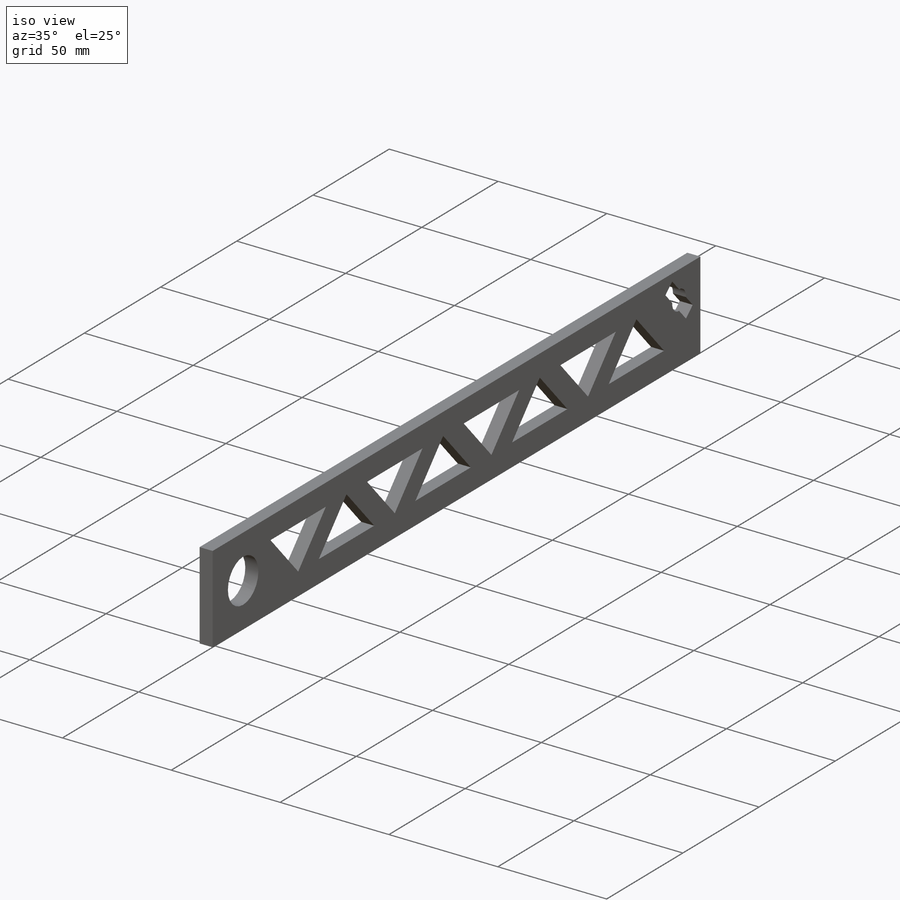
[diagram: iso view]
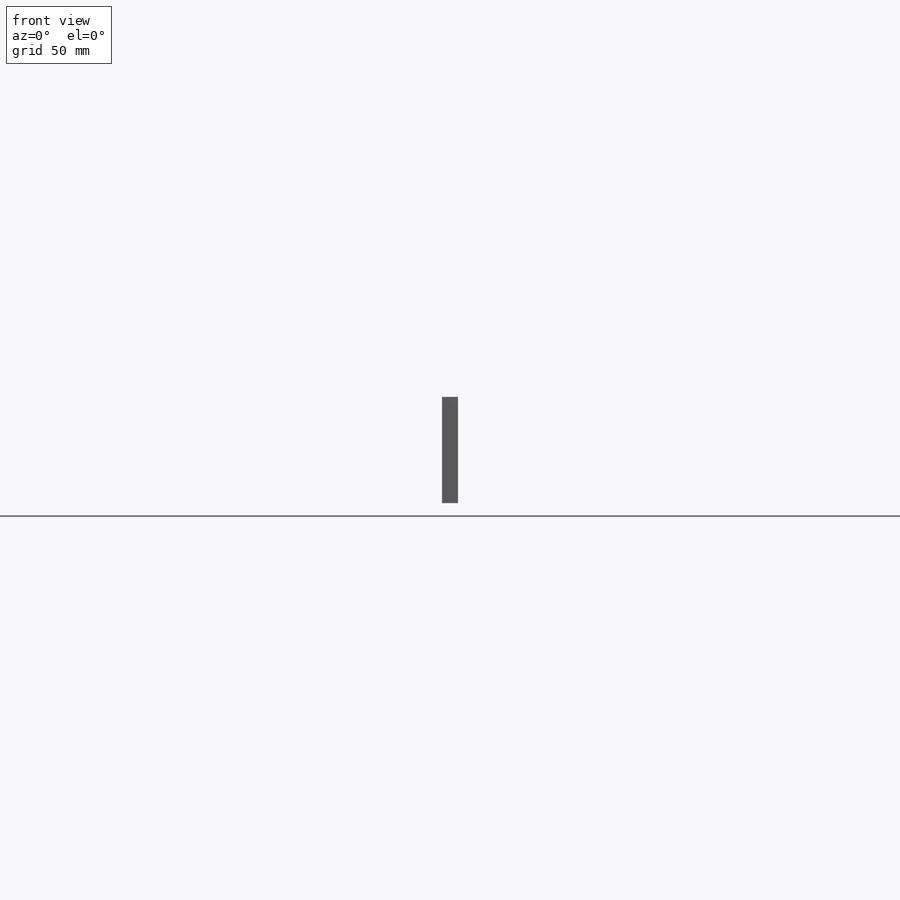
[diagram: front view]
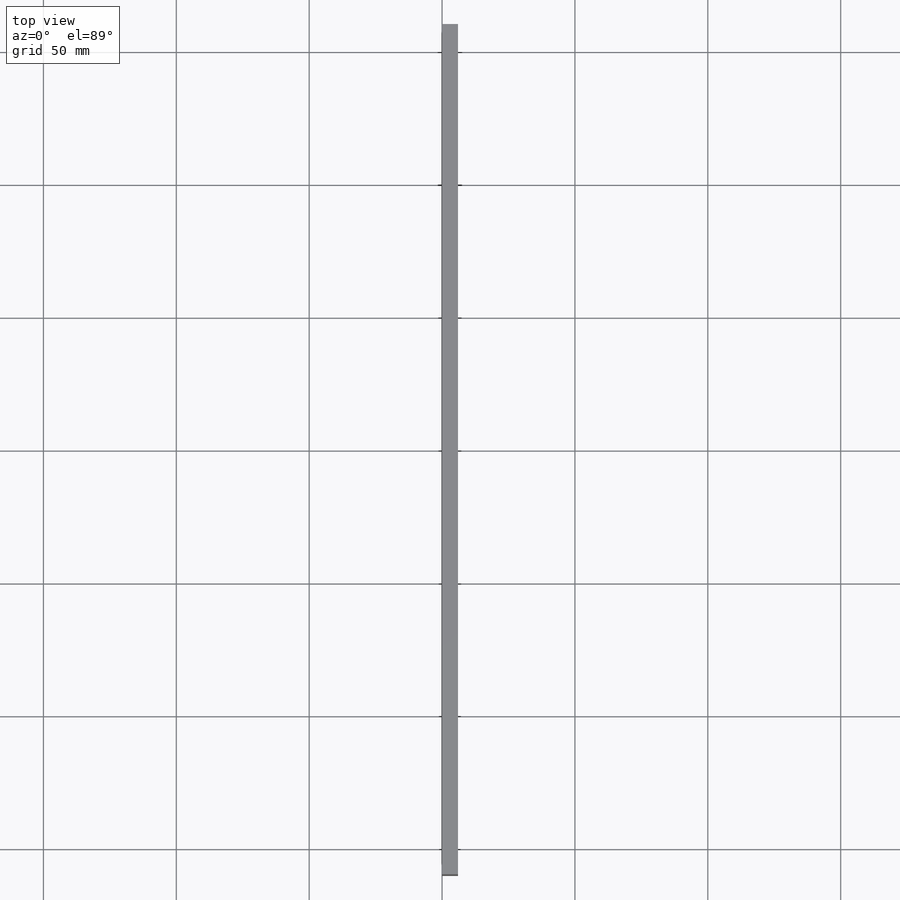
[diagram: top view]
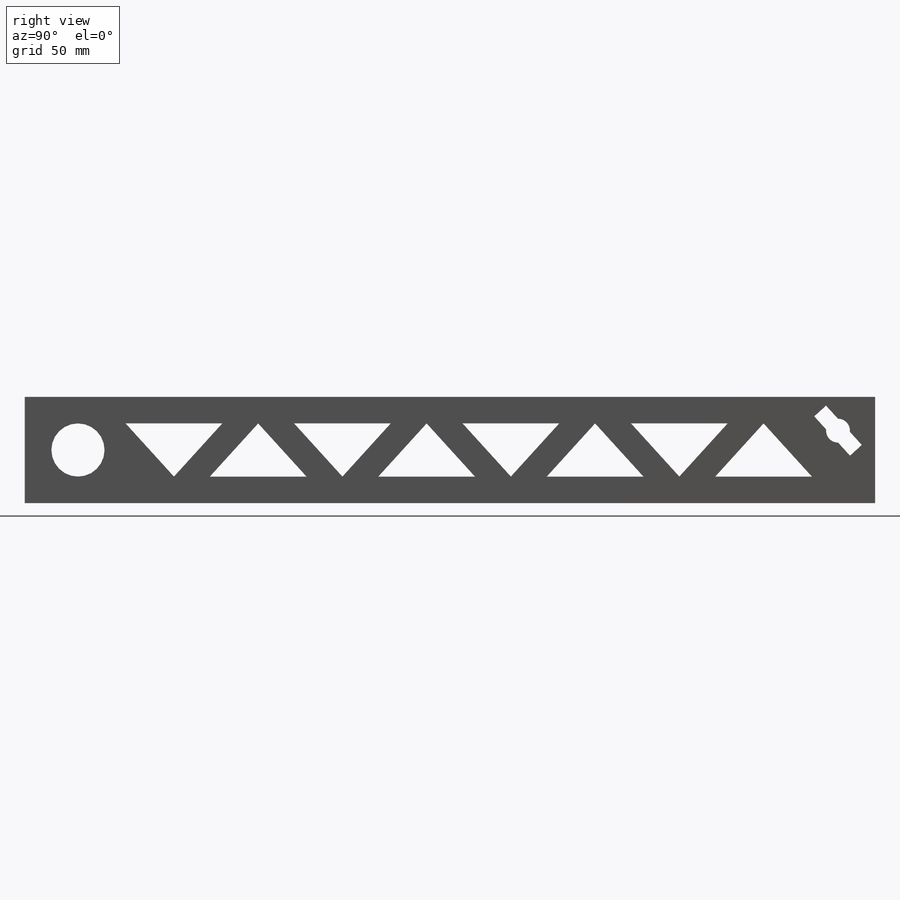
[diagram: right view]
SOLIDWORKS PART (.sldprt)
format: sldprt  version: not decoded by parser v0  size: 250,368 bytes
history: native  units: mm
features: sketch x3, cut_extrude x2, material x1, extrude x1 (+13 scaffold rows collapsed)
feature tree (20):
  scaffold x13  (default folders/planes/origin — collapsed)
  material  "Material <not specified>"
  sketch  "Sketch1"  dims[c1.D3=20.0mm c1.D1=40.0mm c1.D2=320.0mm c1.D4=300.0mm c1.D5=~300.665928mm c2.D4=20.0mm c2.D5=~28.284271mm c3.D5=90.0deg c4.D5=300.0mm]
  extrude  "Boss-Extrude1"  Depth=6mm
  sketch  "Sketch2"  dims[c1.D1=10.0mm c1.D2=10.0mm c1.D3=20.0mm c2.D3=90.0deg c3.D3=10.0mm c3.D4=~36.363636mm c3.D5=~68.060062mm c3.D6=~13.514608mm c3.D7=~13.514608mm c3.D8=~13.514608mm]
  cut_extrude  "Cut-Extrude2"  Depth=10mm
  sketch  "Sketch3"  dims[D2=~13.458723mm D1=0.25mm]
  cut_extrude  "Cut-Extrude3"  [1 undecoded]
decode coverage: 5 of 6 modeling features carry decoded parameters
note: ~ marks probable driven/reference dimensions
note: 1 parameter value undecoded
note: suppression state not decoded; provenance and decode notes live in map.json
